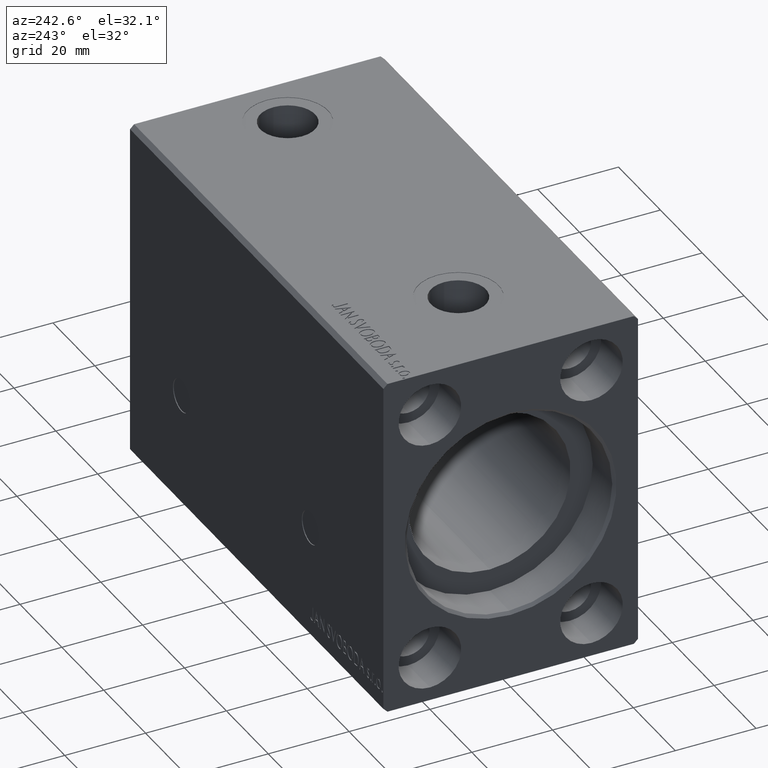
[diagram: clean part render]
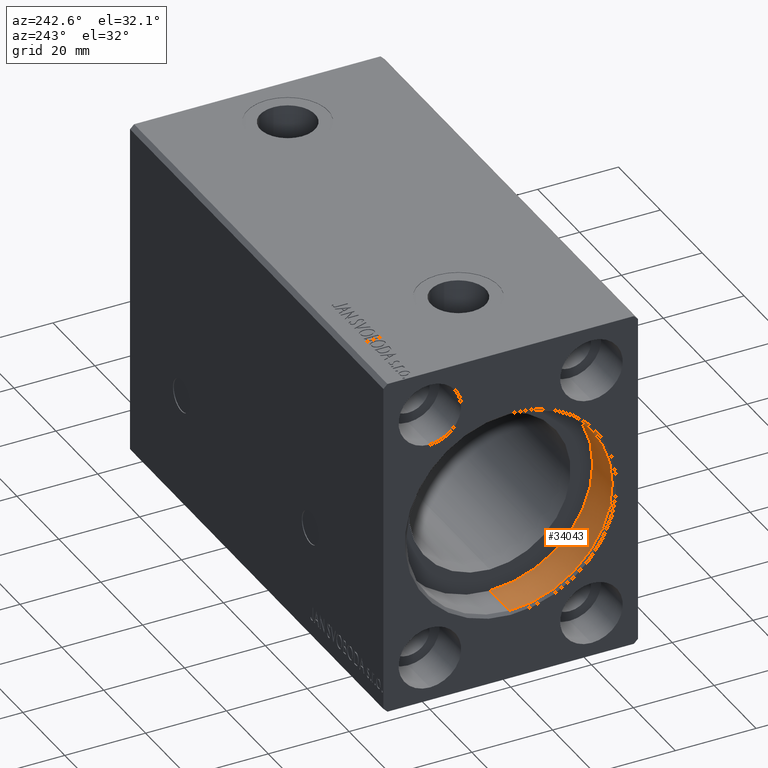
[diagram: same view with one face highlighted and labeled with its STEP entity id]
A machine part, auxiliary view. The second image highlights one B-rep face of the part: STEP entity #34043.
In plain terms, the highlighted cylindrical surface (partial cylindrical patch) has radius 25.5 mm, axis along (-1, -0, -0).
Its self-contained STEP definition (entity closure, byte-faithful):
#39 = LINE ( 'NONE', #13127, #12594 ) ;
#47 = ORIENTED_EDGE ( 'NONE', *, *, #7786, .T. ) ;
#188 = VERTEX_POINT ( 'NONE', #29934 ) ;
#3985 = DIRECTION ( 'NONE',  ( 0.000000000000000000, 0.000000000000000000, -1.000000000000000000 ) ) ;
#5595 = FACE_OUTER_BOUND ( 'NONE', #24273, .T. ) ;
#6777 = DIRECTION ( 'NONE',  ( -1.000000000000000000, 0.000000000000000000, 0.000000000000000000 ) ) ;
#7786 = EDGE_CURVE ( 'NONE', #21692, #17106, #27798, .T. ) ;
#8808 = DIRECTION ( 'NONE',  ( 0.000000000000000000, 0.000000000000000000, 1.000000000000000000 ) ) ;
#8878 = VERTEX_POINT ( 'NONE', #13750 ) ;
#11393 = EDGE_CURVE ( 'NONE', #21692, #8878, #21370, .T. ) ;
#11689 = ORIENTED_EDGE ( 'NONE', *, *, #11393, .F. ) ;
#12594 = VECTOR ( 'NONE', #19772, 1000.000000000000000 ) ;
#12830 = ORIENTED_EDGE ( 'NONE', *, *, #16209, .F. ) ;
#13127 = CARTESIAN_POINT ( 'NONE',  ( 10.00000000000000000, 0.000000000000000000, 25.50000000000000000 ) ) ;
#13750 = CARTESIAN_POINT ( 'NONE',  ( 10.00000000000000000, 0.000000000000000000, 25.50000000000000000 ) ) ;
#14912 = DIRECTION ( 'NONE',  ( -1.000000000000000000, -0.000000000000000000, -0.000000000000000000 ) ) ;
#15222 = DIRECTION ( 'NONE',  ( 0.000000000000000000, 0.000000000000000000, 1.000000000000000000 ) ) ;
#16209 = EDGE_CURVE ( 'NONE', #8878, #188, #39, .T. ) ;
#17106 = VERTEX_POINT ( 'NONE', #35022 ) ;
#17541 = ORIENTED_EDGE ( 'NONE', *, *, #18840, .T. ) ;
#18443 = CARTESIAN_POINT ( 'NONE',  ( 10.00000000000000000, 0.000000000000000000, 0.000000000000000000 ) ) ;
#18840 = EDGE_CURVE ( 'NONE', #17106, #188, #21460, .T. ) ;
#19772 = DIRECTION ( 'NONE',  ( -1.000000000000000000, -0.000000000000000000, -0.000000000000000000 ) ) ;
#21340 = CARTESIAN_POINT ( 'NONE',  ( 10.00000000000000000, 3.122849337825750222E-15, -25.50000000000000000 ) ) ;
#21370 = CIRCLE ( 'NONE', #34422, 25.50000000000000000 ) ;
#21460 = CIRCLE ( 'NONE', #22235, 25.50000000000000000 ) ;
#21692 = VERTEX_POINT ( 'NONE', #33109 ) ;
#22235 = AXIS2_PLACEMENT_3D ( 'NONE', #36201, #6777, #3985 ) ;
#22539 = DIRECTION ( 'NONE',  ( -1.000000000000000000, -0.000000000000000000, -0.000000000000000000 ) ) ;
#24273 = EDGE_LOOP ( 'NONE', ( #11689, #47, #17541, #12830 ) ) ;
#26117 = VECTOR ( 'NONE', #14912, 1000.000000000000000 ) ;
#27798 = LINE ( 'NONE', #21340, #26117 ) ;
#29934 = CARTESIAN_POINT ( 'NONE',  ( 0.7000000000000200506, 0.000000000000000000, 25.50000000000000000 ) ) ;
#31558 = DIRECTION ( 'NONE',  ( -1.000000000000000000, 0.000000000000000000, 0.000000000000000000 ) ) ;
#33109 = CARTESIAN_POINT ( 'NONE',  ( 10.00000000000000000, 3.122849337825750222E-15, -25.50000000000000000 ) ) ;
#34043 = ADVANCED_FACE ( 'NONE', ( #5595 ), #35648, .F. ) ;
#34422 = AXIS2_PLACEMENT_3D ( 'NONE', #18443, #31558, #15222 ) ;
#35022 = CARTESIAN_POINT ( 'NONE',  ( 0.7000000000000200506, 3.122849337825750222E-15, -25.50000000000000000 ) ) ;
#35648 = CYLINDRICAL_SURFACE ( 'NONE', #41009, 25.50000000000000000 ) ;
#36201 = CARTESIAN_POINT ( 'NONE',  ( 0.7000000000000200506, 0.000000000000000000, 0.000000000000000000 ) ) ;
#38025 = CARTESIAN_POINT ( 'NONE',  ( 10.00000000000000000, 0.000000000000000000, 0.000000000000000000 ) ) ;
#41009 = AXIS2_PLACEMENT_3D ( 'NONE', #38025, #22539, #8808 ) ;